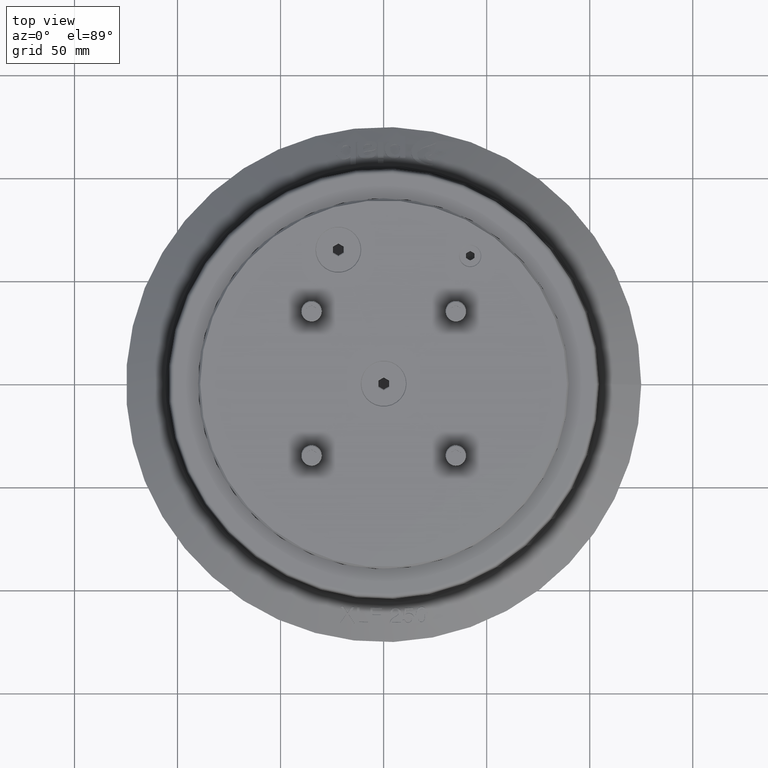
[diagram: clean part render]
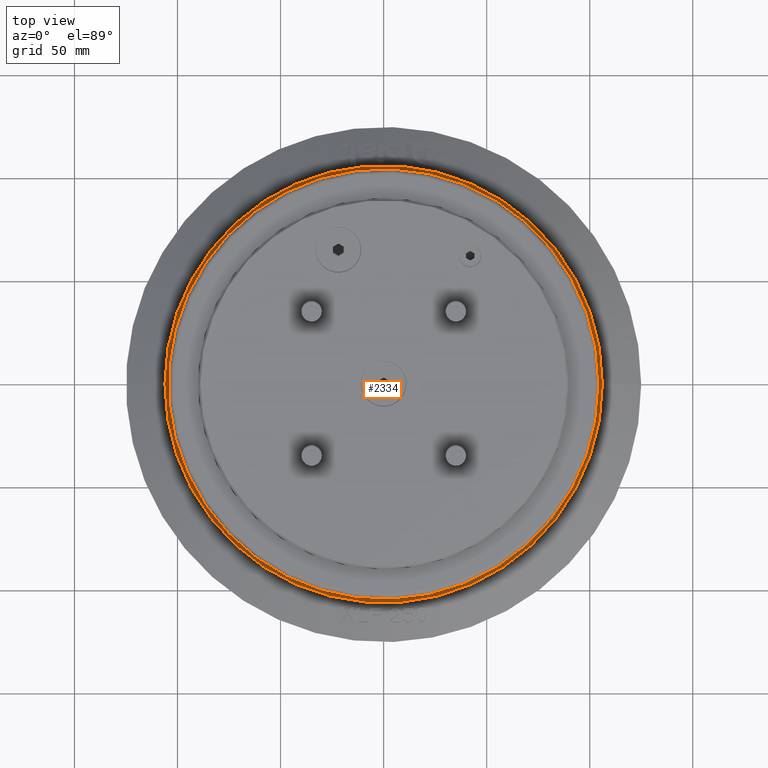
[diagram: same view with one face highlighted and labeled with its STEP entity id]
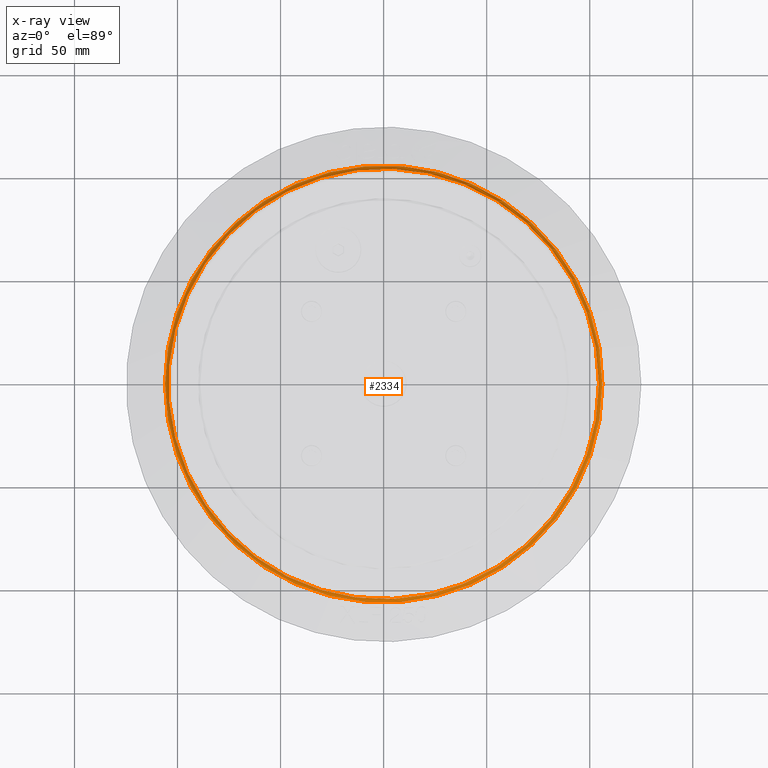
[diagram: x-ray of the same camera — body ghosted, the highlighted face saturated]
A machine part, top view. The second image highlights one B-rep face of the part: STEP entity #2334.
The next image is the same camera in x-ray: the body ghosted, the highlighted face saturated — about 0% of this face is hidden behind the body in this view.
In plain terms, the highlighted toroidal blend (fillet) surface has major radius 108.459 mm and minor (blend) radius 4 mm.
Its self-contained STEP definition (entity closure, byte-faithful):
#2334 = ADVANCED_FACE( '', ( #4805, #4806 ), #4807, .F. );
#4805 = FACE_OUTER_BOUND( '', #9495, .T. );
#4806 = FACE_OUTER_BOUND( '', #9496, .T. );
#4807 = TOROIDAL_SURFACE( '', #9497, 108.459115622442, 4.00000000000000 );
#9495 = EDGE_LOOP( '', ( #14935 ) );
#9496 = EDGE_LOOP( '', ( #14936 ) );
#9497 = AXIS2_PLACEMENT_3D( '', #14937, #14938, #14939 );
#14935 = ORIENTED_EDGE( '', *, *, #16444, .F. );
#14936 = ORIENTED_EDGE( '', *, *, #17095, .T. );
#14937 = CARTESIAN_POINT( '', ( 0.000000000000000, 0.000000000000000, 2.71353673566350 ) );
#14938 = DIRECTION( '', ( 0.000000000000000, 0.000000000000000, 1.00000000000000 ) );
#14939 = DIRECTION( '', ( 1.00000000000000, 0.000000000000000, 0.000000000000000 ) );
#16444 = EDGE_CURVE( '', #19542, #19542, #19543, .T. );
#17095 = EDGE_CURVE( '', #20381, #20381, #20382, .T. );
#19542 = VERTEX_POINT( '', #24926 );
#19543 = CIRCLE( '', #24927, 104.468859421403 );
#20381 = VERTEX_POINT( '', #27063 );
#20382 = CIRCLE( '', #27064, 106.107974613273 );
#24926 = CARTESIAN_POINT( '', ( 104.468859421403, 0.000000000000000, 2.43451084068699 ) );
#24927 = AXIS2_PLACEMENT_3D( '', #29267, #29268, #29269 );
#27063 = CARTESIAN_POINT( '', ( 106.107974613273, 0.000000000000000, -0.522531241836297 ) );
#27064 = AXIS2_PLACEMENT_3D( '', #29770, #29771, #29772 );
#29267 = CARTESIAN_POINT( '', ( 0.000000000000000, 0.000000000000000, 2.43451084068699 ) );
#29268 = DIRECTION( '', ( 0.000000000000000, 0.000000000000000, 1.00000000000000 ) );
#29269 = DIRECTION( '', ( 1.00000000000000, 0.000000000000000, 0.000000000000000 ) );
#29770 = CARTESIAN_POINT( '', ( 0.000000000000000, 0.000000000000000, -0.522531241836297 ) );
#29771 = DIRECTION( '', ( 0.000000000000000, 0.000000000000000, 1.00000000000000 ) );
#29772 = DIRECTION( '', ( 1.00000000000000, 0.000000000000000, 0.000000000000000 ) );